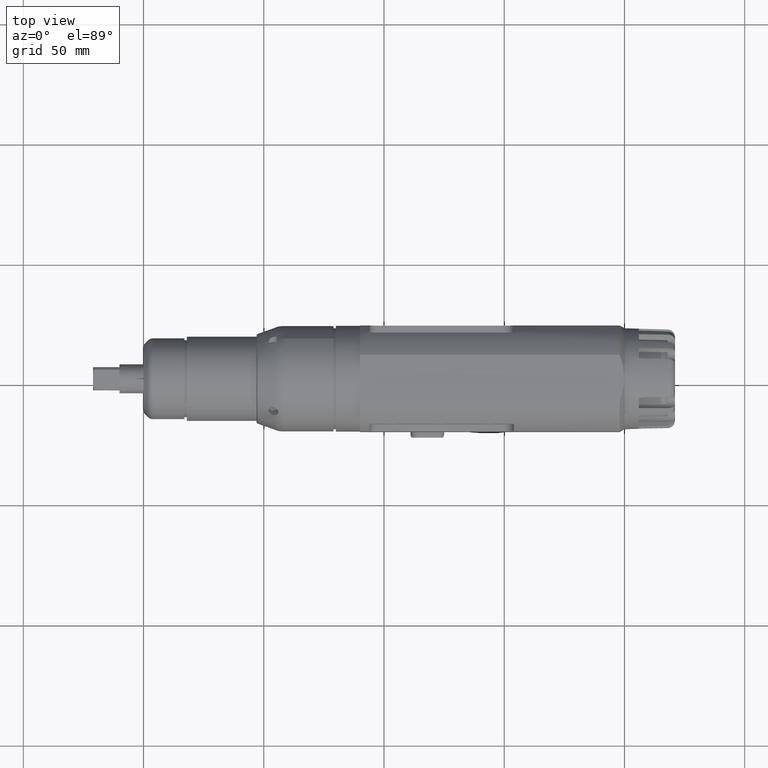
[diagram: clean part render]
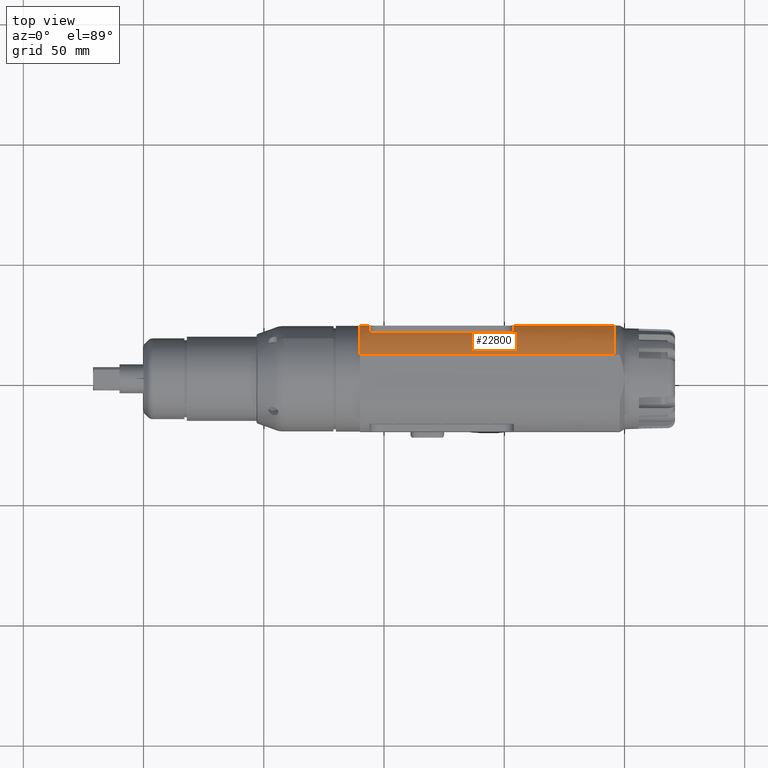
[diagram: same view with one face highlighted and labeled with its STEP entity id]
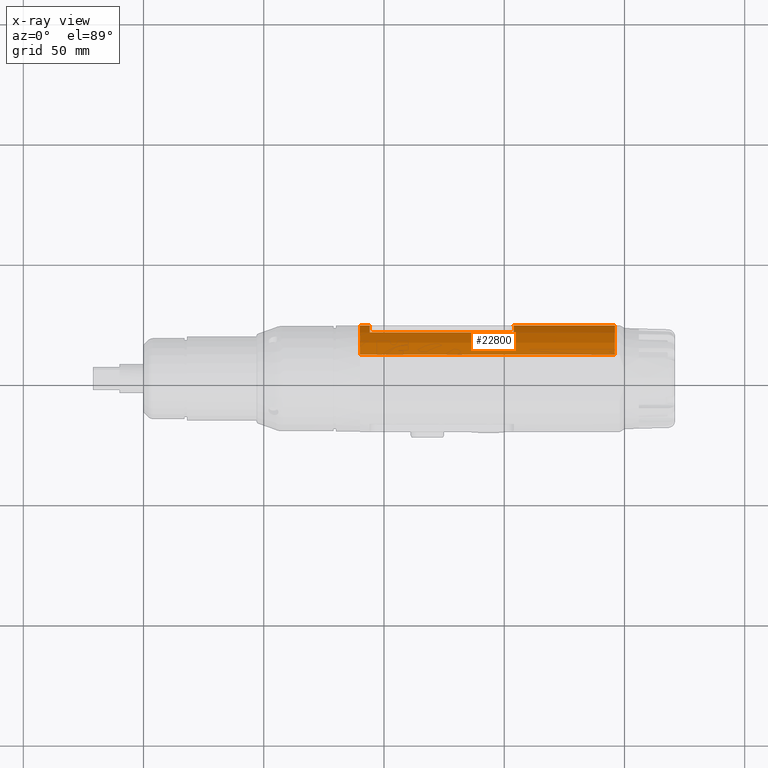
[diagram: x-ray of the same camera — body ghosted, the highlighted face saturated]
A machine part, top view. The second image highlights one B-rep face of the part: STEP entity #22800.
The next image is the same camera in x-ray: the body ghosted, the highlighted face saturated — about 0% of this face is hidden behind the body in this view.
In plain terms, the highlighted cylindrical surface (partial cylindrical patch) has radius 24 mm, axis along (1, 0, -0).
Its self-contained STEP definition (entity closure, byte-faithful):
#536=CYLINDRICAL_SURFACE('',#24596,24.);
#1420=LINE('',#40205,#2776);
#1436=LINE('',#40254,#2792);
#1439=LINE('',#40260,#2795);
#1465=LINE('',#40356,#2821);
#2776=VECTOR('',#28141,10.);
#2792=VECTOR('',#28177,10.);
#2795=VECTOR('',#28180,10.);
#2821=VECTOR('',#28292,10.);
#4569=FACE_OUTER_BOUND('',#5858,.T.);
#5858=EDGE_LOOP('',(#16892,#16893,#16894,#16895,#16896,#16897,#16898,#16899,
#16900,#16901));
#6965=CIRCLE('',#24208,24.);
#7153=CIRCLE('',#24564,24.);
#7168=CIRCLE('',#24597,24.);
#7169=CIRCLE('',#24598,24.);
#7896=B_SPLINE_CURVE_WITH_KNOTS('',3,(#40359,#40360,#40361,#40362),
 .UNSPECIFIED.,.F.,.F.,(4,4),(0.631768122364854,0.78367656246058),
 .UNSPECIFIED.);
#7897=B_SPLINE_CURVE_WITH_KNOTS('',3,(#40363,#40364,#40365,#40366),
 .UNSPECIFIED.,.F.,.F.,(4,4),(2.44922419091122,2.60113263100694),
 .UNSPECIFIED.);
#9312=VERTEX_POINT('',#39209);
#9313=VERTEX_POINT('',#39213);
#9559=VERTEX_POINT('',#40204);
#9574=VERTEX_POINT('',#40253);
#9576=VERTEX_POINT('',#40257);
#9577=VERTEX_POINT('',#40259);
#9602=VERTEX_POINT('',#40352);
#9603=VERTEX_POINT('',#40353);
#9604=VERTEX_POINT('',#40355);
#9605=VERTEX_POINT('',#40357);
#11854=EDGE_CURVE('',#9312,#9313,#6965,.T.);
#12219=EDGE_CURVE('',#9559,#9313,#1420,.T.);
#12241=EDGE_CURVE('',#9574,#9312,#1436,.T.);
#12244=EDGE_CURVE('',#9576,#9577,#1439,.T.);
#12256=EDGE_CURVE('',#9559,#9576,#7153,.T.);
#12291=EDGE_CURVE('',#9602,#9603,#7168,.T.);
#12292=EDGE_CURVE('',#9603,#9604,#1465,.T.);
#12293=EDGE_CURVE('',#9604,#9605,#7169,.T.);
#12294=EDGE_CURVE('',#9605,#9577,#7896,.F.);
#12295=EDGE_CURVE('',#9602,#9574,#7897,.T.);
#16892=ORIENTED_EDGE('',*,*,#12291,.T.);
#16893=ORIENTED_EDGE('',*,*,#12292,.T.);
#16894=ORIENTED_EDGE('',*,*,#12293,.T.);
#16895=ORIENTED_EDGE('',*,*,#12294,.T.);
#16896=ORIENTED_EDGE('',*,*,#12244,.F.);
#16897=ORIENTED_EDGE('',*,*,#12256,.F.);
#16898=ORIENTED_EDGE('',*,*,#12219,.T.);
#16899=ORIENTED_EDGE('',*,*,#11854,.F.);
#16900=ORIENTED_EDGE('',*,*,#12241,.F.);
#16901=ORIENTED_EDGE('',*,*,#12295,.F.);
#22800=ADVANCED_FACE('',(#4569),#536,.T.);
#24208=AXIS2_PLACEMENT_3D('',#39222,#27309,#27310);
#24564=AXIS2_PLACEMENT_3D('',#40282,#28204,#28205);
#24596=AXIS2_PLACEMENT_3D('',#40351,#28288,#28289);
#24597=AXIS2_PLACEMENT_3D('',#40354,#28290,#28291);
#24598=AXIS2_PLACEMENT_3D('',#40358,#28293,#28294);
#27309=DIRECTION('center_axis',(1.,4.02244907513074E-16,-1.15130188021346E-16));
#27310=DIRECTION('ref_axis',(3.22712416470511E-16,-0.916666666666667,-0.399652626942727));
#28141=DIRECTION('',(1.,4.02244907513074E-16,-1.15130188021346E-16));
#28177=DIRECTION('',(1.,4.02244907513074E-16,-1.15130188021346E-16));
#28180=DIRECTION('',(1.,4.02244907513074E-16,-1.15130188021346E-16));
#28204=DIRECTION('center_axis',(-1.,-4.02244907513074E-16,1.15130188021346E-16));
#28205=DIRECTION('ref_axis',(3.22712416470511E-16,-0.916666666666667,-0.399652626942727));
#28288=DIRECTION('center_axis',(1.,4.02244907513074E-16,-1.15130188021346E-16));
#28289=DIRECTION('ref_axis',(3.22712416470511E-16,-0.916666666666667,-0.399652626942727));
#28290=DIRECTION('center_axis',(1.,4.02244907513074E-16,-1.15130188021346E-16));
#28291=DIRECTION('ref_axis',(3.22712416470511E-16,-0.916666666666667,-0.399652626942727));
#28292=DIRECTION('',(-1.,-4.02244907513074E-16,1.15130188021346E-16));
#28293=DIRECTION('center_axis',(-1.,-4.02244907513074E-16,1.15130188021346E-16));
#28294=DIRECTION('ref_axis',(3.22712416470511E-16,-0.916666666666667,-0.399652626942727));
#39209=CARTESIAN_POINT('',(196.,22.0000000000001,9.59166304662539));
#39213=CARTESIAN_POINT('',(196.,9.5916630466255,22.));
#39222=CARTESIAN_POINT('Origin',(196.,4.91605204660587E-14,-4.88498130835069E-14));
#40204=CARTESIAN_POINT('',(90.,9.59166304662546,22.));
#40205=CARTESIAN_POINT('',(90.,9.59166304662546,22.));
#40253=CARTESIAN_POINT('',(153.797560546702,21.9999999865715,9.59166310822648));
#40254=CARTESIAN_POINT('',(90.,22.,9.5916630466254));
#40257=CARTESIAN_POINT('',(90.,22.,9.5916630466254));
#40259=CARTESIAN_POINT('',(94.2024394532982,21.9999999865714,9.59166310822649));
#40260=CARTESIAN_POINT('',(90.,22.,9.5916630466254));
#40282=CARTESIAN_POINT('Origin',(90.,6.52256026967278E-15,-3.5527136788005E-14));
#40351=CARTESIAN_POINT('Origin',(90.,6.52256026967278E-15,-3.5527136788005E-14));
#40352=CARTESIAN_POINT('',(154.,21.3307290077016,11.));
#40353=CARTESIAN_POINT('',(154.,19.,14.6628782986151));
#40354=CARTESIAN_POINT('Origin',(154.,3.22662343505095E-14,-4.44089209850063E-14));
#40355=CARTESIAN_POINT('',(94.,19.,14.6628782986151));
#40356=CARTESIAN_POINT('',(90.,19.,14.6628782986151));
#40357=CARTESIAN_POINT('',(94.,21.3307290077016,11.));
#40358=CARTESIAN_POINT('Origin',(94.,8.13153989972508E-15,-3.5527136788005E-14));
#40359=CARTESIAN_POINT('Ctrl Pts',(94.2024394546481,21.9999999751478,9.591663103628));
#40360=CARTESIAN_POINT('Ctrl Pts',(94.0629478053735,21.7928268811397,10.0668474396274));
#40361=CARTESIAN_POINT('Ctrl Pts',(94.,21.5628113467367,10.5499558653243));
#40362=CARTESIAN_POINT('Ctrl Pts',(94.,21.3307290077016,11.));
#40363=CARTESIAN_POINT('Ctrl Pts',(154.,21.3307290077016,11.));
#40364=CARTESIAN_POINT('Ctrl Pts',(154.,21.5628113467367,10.5499558653243));
#40365=CARTESIAN_POINT('Ctrl Pts',(153.937052194627,21.7928268811398,10.0668474396274));
#40366=CARTESIAN_POINT('Ctrl Pts',(153.797560545352,21.9999999751478,9.59166310362799));